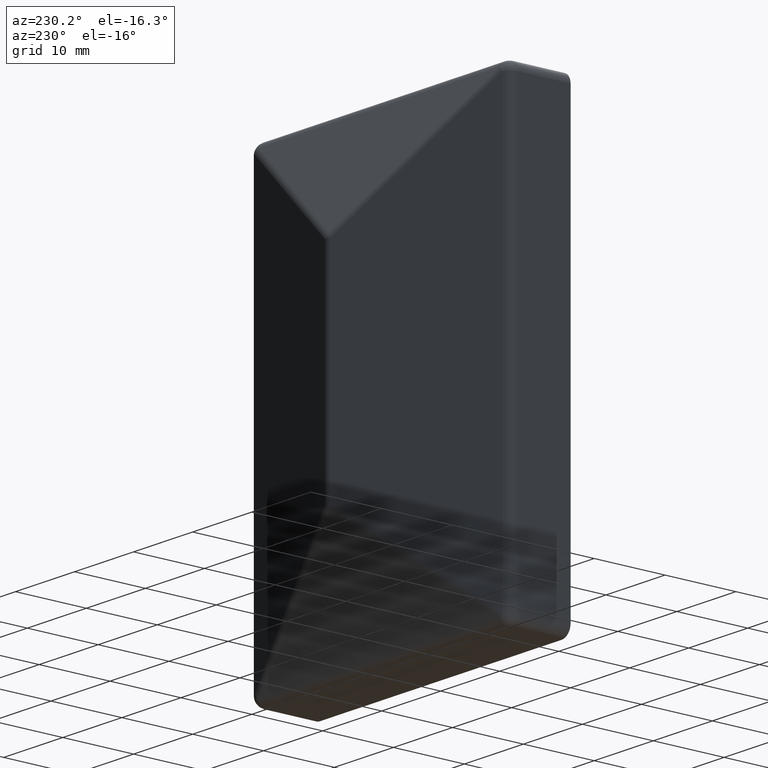
[diagram: clean part render]
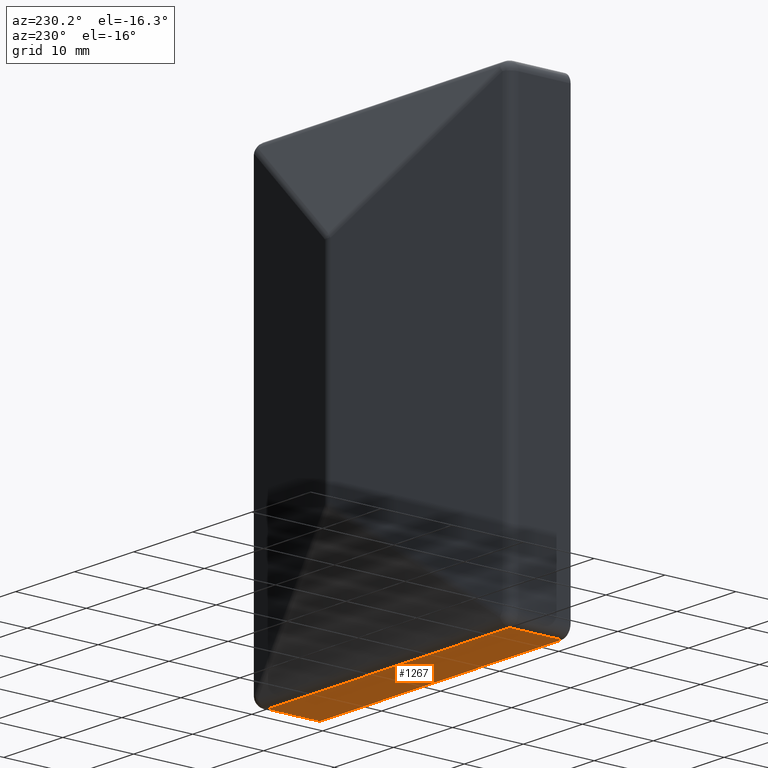
[diagram: same view with one face highlighted and labeled with its STEP entity id]
A machine part, auxiliary view. The second image highlights one B-rep face of the part: STEP entity #1267.
In plain terms, the highlighted planar face has unit normal (0, 0, 1).
Its self-contained STEP definition (entity closure, byte-faithful):
#682 = DIRECTION ( 'NONE',  ( 0.000000000000000000, -1.000000000000000000, 0.000000000000000000 ) ) ;
#727 = CARTESIAN_POINT ( 'NONE',  ( 20.49999999999998934, 30.00000000000000000, -32.00000000000000000 ) ) ;
#1046 = ORIENTED_EDGE ( 'NONE', *, *, #7591, .T. ) ;
#1179 = DIRECTION ( 'NONE',  ( 1.000000000000000000, 0.000000000000000000, -0.000000000000000000 ) ) ;
#1267 = ADVANCED_FACE ( 'NONE', ( #8808 ), #8504, .F. ) ;
#1913 = CARTESIAN_POINT ( 'NONE',  ( 20.49999999999998934, 0.000000000000000000, -32.00000000000000000 ) ) ;
#2060 = EDGE_CURVE ( 'NONE', #10574, #7157, #8276, .T. ) ;
#2904 = VERTEX_POINT ( 'NONE', #1913 ) ;
#3012 = ORIENTED_EDGE ( 'NONE', *, *, #2060, .T. ) ;
#3998 = ORIENTED_EDGE ( 'NONE', *, *, #14148, .T. ) ;
#4080 = EDGE_CURVE ( 'NONE', #4371, #10574, #9630, .T. ) ;
#4169 = VECTOR ( 'NONE', #10536, 1000.000000000000000 ) ;
#4371 = VERTEX_POINT ( 'NONE', #4402 ) ;
#4402 = CARTESIAN_POINT ( 'NONE',  ( -20.50000000000000355, 0.000000000000000000, -32.00000000000000000 ) ) ;
#4683 = CARTESIAN_POINT ( 'NONE',  ( 20.49999999999998934, 7.349999999999999645, -32.00000000000000000 ) ) ;
#5115 = VECTOR ( 'NONE', #682, 1000.000000000000000 ) ;
#5499 = CARTESIAN_POINT ( 'NONE',  ( -22.00000000000000711, 7.349999999999999645, -32.00000000000000000 ) ) ;
#6433 = ORIENTED_EDGE ( 'NONE', *, *, #4080, .T. ) ;
#6710 = DIRECTION ( 'NONE',  ( 1.000000000000000000, -0.000000000000000000, -0.000000000000000000 ) ) ;
#7060 = LINE ( 'NONE', #9194, #4169 ) ;
#7157 = VERTEX_POINT ( 'NONE', #4683 ) ;
#7400 = VECTOR ( 'NONE', #8374, 1000.000000000000000 ) ;
#7591 = EDGE_CURVE ( 'NONE', #7157, #2904, #13837, .T. ) ;
#8181 = CARTESIAN_POINT ( 'NONE',  ( -20.50000000000000355, 30.00000000000000000, -32.00000000000000000 ) ) ;
#8276 = LINE ( 'NONE', #5499, #11687 ) ;
#8374 = DIRECTION ( 'NONE',  ( -0.000000000000000000, 1.000000000000000000, -0.000000000000000000 ) ) ;
#8504 = PLANE ( 'NONE',  #11369 ) ;
#8808 = FACE_OUTER_BOUND ( 'NONE', #11627, .T. ) ;
#9194 = CARTESIAN_POINT ( 'NONE',  ( -22.00000000000000711, 0.000000000000000000, -32.00000000000000000 ) ) ;
#9592 = CARTESIAN_POINT ( 'NONE',  ( -22.00000000000000711, 30.00000000000000000, -32.00000000000000000 ) ) ;
#9630 = LINE ( 'NONE', #8181, #7400 ) ;
#10536 = DIRECTION ( 'NONE',  ( -1.000000000000000000, -0.000000000000000000, -0.000000000000000000 ) ) ;
#10574 = VERTEX_POINT ( 'NONE', #11559 ) ;
#11369 = AXIS2_PLACEMENT_3D ( 'NONE', #9592, #14175, #1179 ) ;
#11559 = CARTESIAN_POINT ( 'NONE',  ( -20.50000000000000355, 7.349999999999999645, -32.00000000000000000 ) ) ;
#11627 = EDGE_LOOP ( 'NONE', ( #3012, #1046, #3998, #6433 ) ) ;
#11687 = VECTOR ( 'NONE', #6710, 1000.000000000000000 ) ;
#13837 = LINE ( 'NONE', #727, #5115 ) ;
#14148 = EDGE_CURVE ( 'NONE', #2904, #4371, #7060, .T. ) ;
#14175 = DIRECTION ( 'NONE',  ( 0.000000000000000000, 0.000000000000000000, 1.000000000000000000 ) ) ;